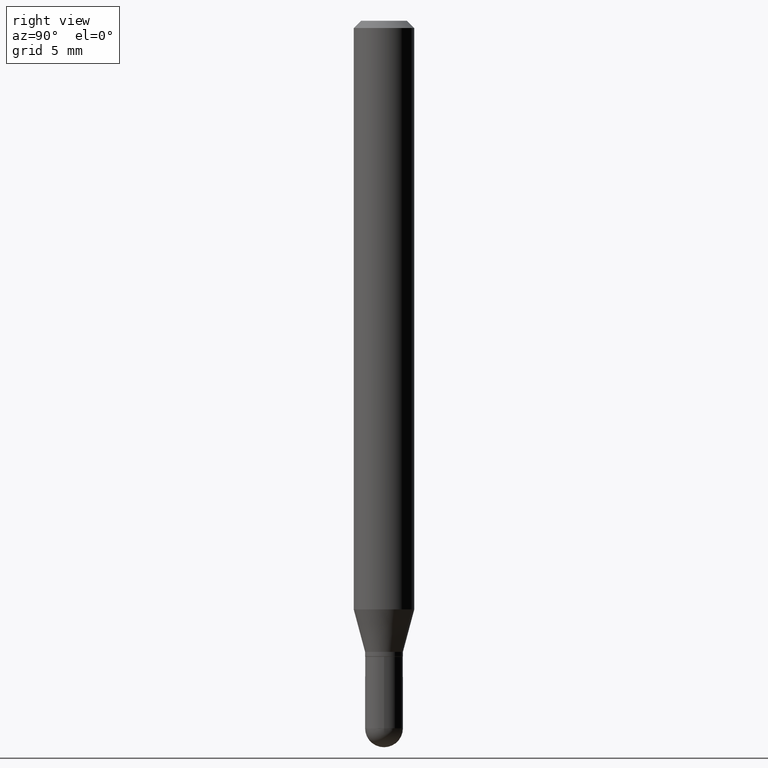
[diagram: clean part render]
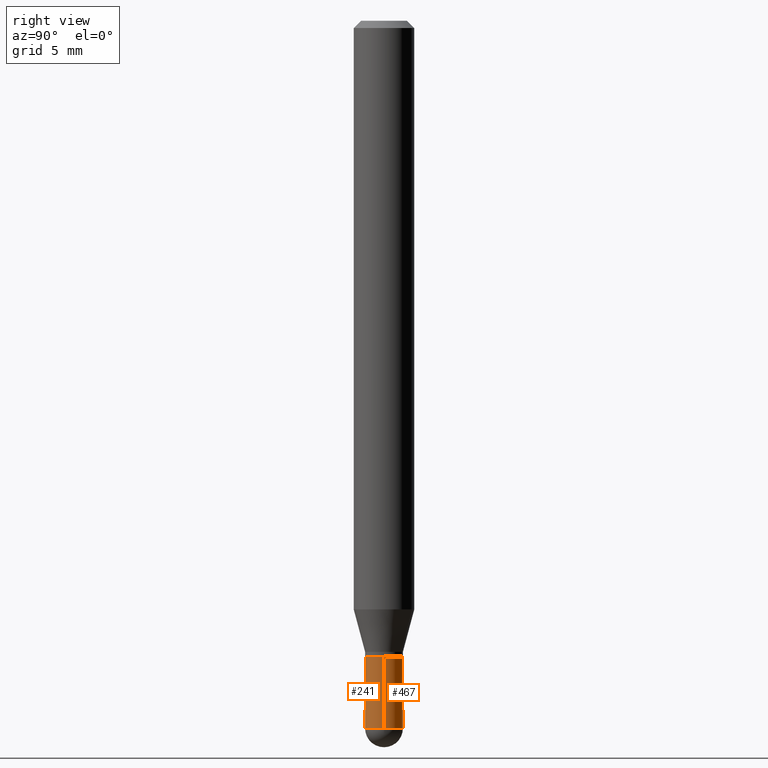
[diagram: same view with one multi-face feature highlighted, each face labeled with its STEP entity id]
A machine part, right view. The highlighted faces form ONE feature: a constant-radius fillet chain: 2 tangent blend faces with common blend radius 0.9919 mm. The faces share edges in the B-rep.
Their STEP definitions:
[1] entity #241 (Cylinder):
#14 = VERTEX_POINT ( 'NONE', #400 ) ;
#21 = EDGE_LOOP ( 'NONE', ( #140, #377, #352, #110, #145 ) ) ;
#28 = VECTOR ( 'NONE', #227, 39.37007874015748143 ) ;
#30 = CARTESIAN_POINT ( 'NONE',  ( 0.000000000000000000, 0.000000000000000000, 0.000000000000000000 ) ) ;
#67 = CIRCLE ( 'NONE', #406, 0.03905000000000000832 ) ;
#68 = VERTEX_POINT ( 'NONE', #353 ) ;
#74 = CARTESIAN_POINT ( 'NONE',  ( -0.03905000000000000832, 2.774669383143191817E-16, -1.920844152744540988E-30 ) ) ;
#83 = CARTESIAN_POINT ( 'NONE',  ( -0.03905000000000000138, -4.565130391627653569E-15, -1.313000000000000167 ) ) ;
#110 = ORIENTED_EDGE ( 'NONE', *, *, #283, .T. ) ;
#120 = DIRECTION ( 'NONE',  ( -2.445468806185136597E-29, 3.491481338843145583E-15, 1.000000000000000000 ) ) ;
#123 = DIRECTION ( 'NONE',  ( -2.445468806185136597E-29, 3.491481338843145583E-15, 1.000000000000000000 ) ) ;
#140 = ORIENTED_EDGE ( 'NONE', *, *, #322, .F. ) ;
#141 = CARTESIAN_POINT ( 'NONE',  ( -0.03905000000000000832, -4.565130391627653569E-15, -1.460950000000000193 ) ) ;
#145 = ORIENTED_EDGE ( 'NONE', *, *, #511, .F. ) ;
#158 = CARTESIAN_POINT ( 'NONE',  ( 3.572707652396175485E-29, -5.100879661982893620E-15, -1.460950000000000193 ) ) ;
#162 = VERTEX_POINT ( 'NONE', #141 ) ;
#173 = AXIS2_PLACEMENT_3D ( 'NONE', #30, #187, #307 ) ;
#187 = DIRECTION ( 'NONE',  ( -2.445468806185136597E-29, 3.491481338843145583E-15, 1.000000000000000000 ) ) ;
#192 = AXIS2_PLACEMENT_3D ( 'NONE', #158, #123, #428 ) ;
#198 = VERTEX_POINT ( 'NONE', #334 ) ;
#215 = CIRCLE ( 'NONE', #192, 0.03905000000000000832 ) ;
#227 = DIRECTION ( 'NONE',  ( -2.445468806185136877E-29, 3.491481338843145188E-15, 1.000000000000000000 ) ) ;
#241 = ADVANCED_FACE ( 'NONE', ( #378 ), #266, .T. ) ;
#265 = LINE ( 'NONE', #460, #408 ) ;
#266 = CYLINDRICAL_SURFACE ( 'NONE', #173, 0.03905000000000000832 ) ;
#275 = CARTESIAN_POINT ( 'NONE',  ( 3.210900542521084585E-29, -4.584314997901050598E-15, -1.313000000000000167 ) ) ;
#280 = DIRECTION ( 'NONE',  ( -2.445468806185136597E-29, 3.491481338843145583E-15, 1.000000000000000000 ) ) ;
#283 = EDGE_CURVE ( 'NONE', #68, #198, #265, .T. ) ;
#293 = CIRCLE ( 'NONE', #416, 0.03905000000000000138 ) ;
#307 = DIRECTION ( 'NONE',  ( 1.000000000000000000, -6.982962677686266711E-15, 4.876176775795935232E-29 ) ) ;
#314 = CARTESIAN_POINT ( 'NONE',  ( 3.572707652396175485E-29, -5.100879661982893620E-15, -1.460950000000000193 ) ) ;
#322 = EDGE_CURVE ( 'NONE', #162, #457, #383, .T. ) ;
#334 = CARTESIAN_POINT ( 'NONE',  ( 0.03905000000000000138, -4.856999690464699711E-15, -1.313000000000000167 ) ) ;
#352 = ORIENTED_EDGE ( 'NONE', *, *, #441, .T. ) ;
#353 = CARTESIAN_POINT ( 'NONE',  ( 0.03905000000000000832, -5.115282022505621222E-15, -1.460950000000000193 ) ) ;
#377 = ORIENTED_EDGE ( 'NONE', *, *, #497, .T. ) ;
#378 = FACE_OUTER_BOUND ( 'NONE', #21, .T. ) ;
#383 = LINE ( 'NONE', #74, #28 ) ;
#399 = DIRECTION ( 'NONE',  ( 1.000000000000000000, -6.982962677686266711E-15, 0.000000000000000000 ) ) ;
#400 = CARTESIAN_POINT ( 'NONE',  ( -2.774669383142833871E-16, -0.03905000000000510146, -1.460950000000000193 ) ) ;
#406 = AXIS2_PLACEMENT_3D ( 'NONE', #314, #120, #425 ) ;
#408 = VECTOR ( 'NONE', #500, 39.37007874015748143 ) ;
#416 = AXIS2_PLACEMENT_3D ( 'NONE', #275, #280, #399 ) ;
#425 = DIRECTION ( 'NONE',  ( 1.000000000000000000, -6.982962677686265133E-15, 0.000000000000000000 ) ) ;
#428 = DIRECTION ( 'NONE',  ( 1.000000000000000000, -6.982962677686265133E-15, 0.000000000000000000 ) ) ;
#441 = EDGE_CURVE ( 'NONE', #14, #68, #215, .T. ) ;
#457 = VERTEX_POINT ( 'NONE', #83 ) ;
#460 = CARTESIAN_POINT ( 'NONE',  ( 0.03905000000000000832, -2.726846925636487675E-16, 1.904147030948313202E-30 ) ) ;
#497 = EDGE_CURVE ( 'NONE', #162, #14, #67, .T. ) ;
#500 = DIRECTION ( 'NONE',  ( -2.445468806185136877E-29, 3.491481338843145188E-15, 1.000000000000000000 ) ) ;
#511 = EDGE_CURVE ( 'NONE', #457, #198, #293, .T. ) ;
[2] entity #467 (Cylinder):
#28 = VECTOR ( 'NONE', #227, 39.37007874015748143 ) ;
#44 = CYLINDRICAL_SURFACE ( 'NONE', #301, 0.03905000000000000832 ) ;
#57 = AXIS2_PLACEMENT_3D ( 'NONE', #149, #221, #502 ) ;
#68 = VERTEX_POINT ( 'NONE', #353 ) ;
#69 = CIRCLE ( 'NONE', #222, 0.03905000000000000832 ) ;
#74 = CARTESIAN_POINT ( 'NONE',  ( -0.03905000000000000832, 2.774669383143191817E-16, -1.920844152744540988E-30 ) ) ;
#81 = EDGE_CURVE ( 'NONE', #68, #430, #69, .T. ) ;
#83 = CARTESIAN_POINT ( 'NONE',  ( -0.03905000000000000138, -4.565130391627653569E-15, -1.313000000000000167 ) ) ;
#93 = ORIENTED_EDGE ( 'NONE', *, *, #346, .T. ) ;
#131 = DIRECTION ( 'NONE',  ( -2.445468806185136597E-29, 3.491481338843145583E-15, 1.000000000000000000 ) ) ;
#139 = ORIENTED_EDGE ( 'NONE', *, *, #226, .F. ) ;
#141 = CARTESIAN_POINT ( 'NONE',  ( -0.03905000000000000832, -4.565130391627653569E-15, -1.460950000000000193 ) ) ;
#149 = CARTESIAN_POINT ( 'NONE',  ( 3.572707652396175485E-29, -5.100879661982893620E-15, -1.460950000000000193 ) ) ;
#162 = VERTEX_POINT ( 'NONE', #141 ) ;
#198 = VERTEX_POINT ( 'NONE', #334 ) ;
#200 = DIRECTION ( 'NONE',  ( 1.000000000000000000, -6.982962677686265133E-15, 0.000000000000000000 ) ) ;
#220 = CARTESIAN_POINT ( 'NONE',  ( 3.210900542521084585E-29, -4.584314997901050598E-15, -1.313000000000000167 ) ) ;
#221 = DIRECTION ( 'NONE',  ( -2.445468806185136597E-29, 3.491481338843145583E-15, 1.000000000000000000 ) ) ;
#222 = AXIS2_PLACEMENT_3D ( 'NONE', #277, #131, #200 ) ;
#226 = EDGE_CURVE ( 'NONE', #198, #457, #302, .T. ) ;
#227 = DIRECTION ( 'NONE',  ( -2.445468806185136877E-29, 3.491481338843145188E-15, 1.000000000000000000 ) ) ;
#232 = ORIENTED_EDGE ( 'NONE', *, *, #81, .T. ) ;
#234 = DIRECTION ( 'NONE',  ( -2.445468806185136597E-29, 3.491481338843145583E-15, 1.000000000000000000 ) ) ;
#265 = LINE ( 'NONE', #460, #408 ) ;
#268 = CIRCLE ( 'NONE', #57, 0.03905000000000000832 ) ;
#277 = CARTESIAN_POINT ( 'NONE',  ( 3.572707652396175485E-29, -5.100879661982893620E-15, -1.460950000000000193 ) ) ;
#278 = FACE_OUTER_BOUND ( 'NONE', #311, .T. ) ;
#283 = EDGE_CURVE ( 'NONE', #68, #198, #265, .T. ) ;
#301 = AXIS2_PLACEMENT_3D ( 'NONE', #392, #234, #319 ) ;
#302 = CIRCLE ( 'NONE', #327, 0.03905000000000000138 ) ;
#311 = EDGE_LOOP ( 'NONE', ( #93, #413, #139, #451, #232 ) ) ;
#319 = DIRECTION ( 'NONE',  ( 1.000000000000000000, -6.982962677686266711E-15, 4.876176775795935232E-29 ) ) ;
#322 = EDGE_CURVE ( 'NONE', #162, #457, #383, .T. ) ;
#327 = AXIS2_PLACEMENT_3D ( 'NONE', #220, #493, #455 ) ;
#334 = CARTESIAN_POINT ( 'NONE',  ( 0.03905000000000000138, -4.856999690464699711E-15, -1.313000000000000167 ) ) ;
#346 = EDGE_CURVE ( 'NONE', #430, #162, #268, .T. ) ;
#353 = CARTESIAN_POINT ( 'NONE',  ( 0.03905000000000000832, -5.115282022505621222E-15, -1.460950000000000193 ) ) ;
#358 = CARTESIAN_POINT ( 'NONE',  ( 2.726846925636844142E-16, 0.03904999999999489435, -1.460950000000000193 ) ) ;
#383 = LINE ( 'NONE', #74, #28 ) ;
#392 = CARTESIAN_POINT ( 'NONE',  ( 0.000000000000000000, 0.000000000000000000, 0.000000000000000000 ) ) ;
#408 = VECTOR ( 'NONE', #500, 39.37007874015748143 ) ;
#413 = ORIENTED_EDGE ( 'NONE', *, *, #322, .T. ) ;
#430 = VERTEX_POINT ( 'NONE', #358 ) ;
#451 = ORIENTED_EDGE ( 'NONE', *, *, #283, .F. ) ;
#455 = DIRECTION ( 'NONE',  ( 1.000000000000000000, -6.982962677686266711E-15, 0.000000000000000000 ) ) ;
#457 = VERTEX_POINT ( 'NONE', #83 ) ;
#460 = CARTESIAN_POINT ( 'NONE',  ( 0.03905000000000000832, -2.726846925636487675E-16, 1.904147030948313202E-30 ) ) ;
#467 = ADVANCED_FACE ( 'NONE', ( #278 ), #44, .T. ) ;
#493 = DIRECTION ( 'NONE',  ( -2.445468806185136597E-29, 3.491481338843145583E-15, 1.000000000000000000 ) ) ;
#500 = DIRECTION ( 'NONE',  ( -2.445468806185136877E-29, 3.491481338843145188E-15, 1.000000000000000000 ) ) ;
#502 = DIRECTION ( 'NONE',  ( 1.000000000000000000, -6.982962677686265133E-15, 0.000000000000000000 ) ) ;